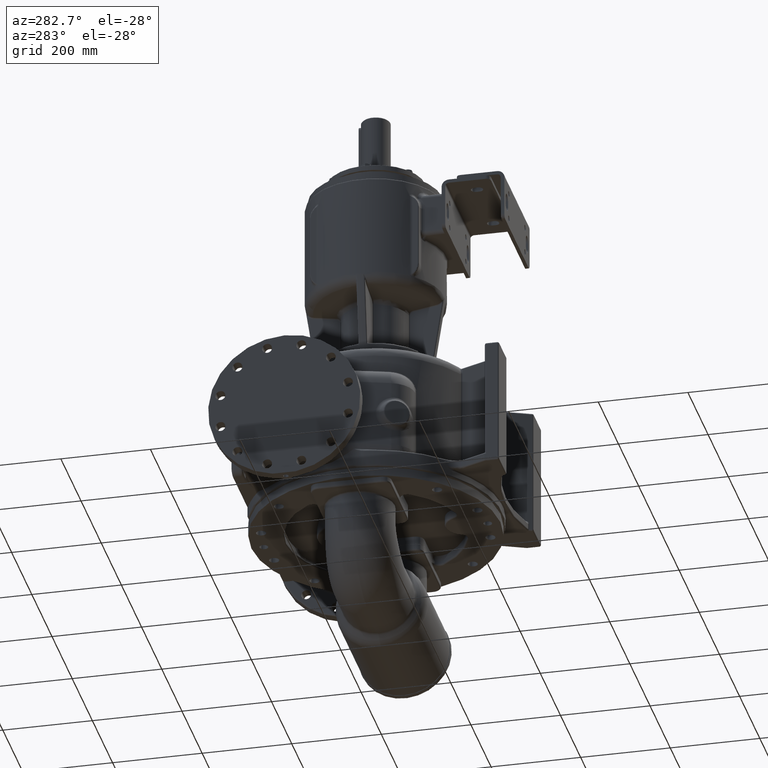
[diagram: clean part render]
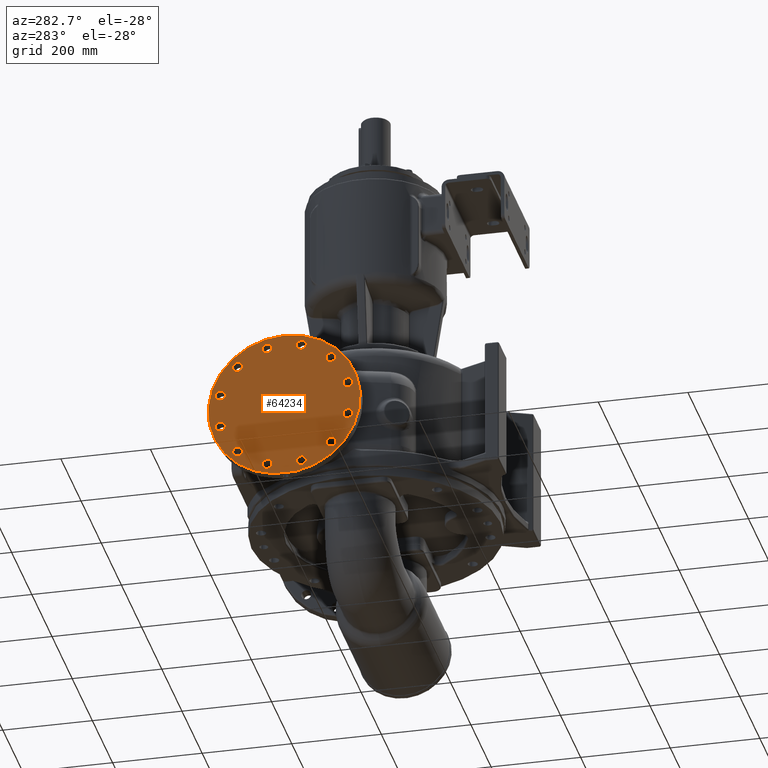
[diagram: same view with one face highlighted and labeled with its STEP entity id]
A machine part, auxiliary view. The second image highlights one B-rep face of the part: STEP entity #64234.
In plain terms, the highlighted planar face has unit normal (-1, 0, 0).
Its self-contained STEP definition (entity closure, byte-faithful):
#14852=CARTESIAN_POINT('',(-3.53E2,4.47E2,0.E0));
#14853=DIRECTION('',(-1.E0,0.E0,0.E0));
#14854=DIRECTION('',(0.E0,-1.529411764706E-1,-9.882352941176E-1));
#14855=AXIS2_PLACEMENT_3D('',#14852,#14853,#14854);
#14934=DIRECTION('',(0.E0,1.E0,0.E0));
#14935=VECTOR('',#14934,5.2E1);
#14936=CARTESIAN_POINT('',(-3.53E2,4.21E2,-1.68E2));
#14937=LINE('',#14936,#14935);
#14938=CARTESIAN_POINT('',(-3.53E2,5.894740593776E2,3.817580915262E1));
#14939=DIRECTION('',(1.E0,0.E0,0.E0));
#14940=DIRECTION('',(0.E0,1.E0,0.E0));
#14941=AXIS2_PLACEMENT_3D('',#14938,#14939,#14940);
#14943=CARTESIAN_POINT('',(-3.53E2,5.894740593776E2,3.817580915262E1));
#14944=DIRECTION('',(1.E0,0.E0,0.E0));
#14945=DIRECTION('',(0.E0,-1.E0,0.E0));
#14946=AXIS2_PLACEMENT_3D('',#14943,#14944,#14945);
#14948=CARTESIAN_POINT('',(-3.53E2,5.894740593776E2,-3.817580915262E1));
#14949=DIRECTION('',(1.E0,0.E0,0.E0));
#14950=DIRECTION('',(0.E0,8.660254037844E-1,-5.E-1));
#14951=AXIS2_PLACEMENT_3D('',#14948,#14949,#14950);
#14953=CARTESIAN_POINT('',(-3.53E2,5.894740593776E2,-3.817580915262E1));
#14954=DIRECTION('',(1.E0,0.E0,0.E0));
#14955=DIRECTION('',(0.E0,-8.660254037844E-1,5.E-1));
#14956=AXIS2_PLACEMENT_3D('',#14953,#14954,#14955);
#14958=CARTESIAN_POINT('',(-3.53E2,5.512982502250E2,-1.042982502250E2));
#14959=DIRECTION('',(1.E0,0.E0,0.E0));
#14960=DIRECTION('',(0.E0,5.E-1,-8.660254037844E-1));
#14961=AXIS2_PLACEMENT_3D('',#14958,#14959,#14960);
#14963=CARTESIAN_POINT('',(-3.53E2,5.512982502250E2,-1.042982502250E2));
#14964=DIRECTION('',(1.E0,0.E0,0.E0));
#14965=DIRECTION('',(0.E0,-5.E-1,8.660254037844E-1));
#14966=AXIS2_PLACEMENT_3D('',#14963,#14964,#14965);
#14968=CARTESIAN_POINT('',(-3.53E2,4.851758091526E2,-1.424740593776E2));
#14969=DIRECTION('',(1.E0,0.E0,0.E0));
#14970=DIRECTION('',(0.E0,0.E0,-1.E0));
#14971=AXIS2_PLACEMENT_3D('',#14968,#14969,#14970);
#14973=CARTESIAN_POINT('',(-3.53E2,4.851758091526E2,-1.424740593776E2));
#14974=DIRECTION('',(1.E0,0.E0,0.E0));
#14975=DIRECTION('',(0.E0,0.E0,1.E0));
#14976=AXIS2_PLACEMENT_3D('',#14973,#14974,#14975);
#14978=CARTESIAN_POINT('',(-3.53E2,4.088241908474E2,-1.424740593776E2));
#14979=DIRECTION('',(1.E0,0.E0,0.E0));
#14980=DIRECTION('',(0.E0,-5.E-1,-8.660254037844E-1));
#14981=AXIS2_PLACEMENT_3D('',#14978,#14979,#14980);
#14983=CARTESIAN_POINT('',(-3.53E2,4.088241908474E2,-1.424740593776E2));
#14984=DIRECTION('',(1.E0,0.E0,0.E0));
#14985=DIRECTION('',(0.E0,5.E-1,8.660254037844E-1));
#14986=AXIS2_PLACEMENT_3D('',#14983,#14984,#14985);
#14988=CARTESIAN_POINT('',(-3.53E2,3.427017497750E2,-1.042982502250E2));
#14989=DIRECTION('',(1.E0,0.E0,0.E0));
#14990=DIRECTION('',(0.E0,-8.660254037844E-1,-5.E-1));
#14991=AXIS2_PLACEMENT_3D('',#14988,#14989,#14990);
#14993=CARTESIAN_POINT('',(-3.53E2,3.427017497750E2,-1.042982502250E2));
#14994=DIRECTION('',(1.E0,0.E0,0.E0));
#14995=DIRECTION('',(0.E0,8.660254037844E-1,5.E-1));
#14996=AXIS2_PLACEMENT_3D('',#14993,#14994,#14995);
#14998=CARTESIAN_POINT('',(-3.53E2,3.045259406224E2,-3.817580915262E1));
#14999=DIRECTION('',(1.E0,0.E0,0.E0));
#15000=DIRECTION('',(0.E0,-1.E0,0.E0));
#15001=AXIS2_PLACEMENT_3D('',#14998,#14999,#15000);
#15003=CARTESIAN_POINT('',(-3.53E2,3.045259406224E2,-3.817580915262E1));
#15004=DIRECTION('',(1.E0,0.E0,0.E0));
#15005=DIRECTION('',(0.E0,1.E0,0.E0));
#15006=AXIS2_PLACEMENT_3D('',#15003,#15004,#15005);
#15008=CARTESIAN_POINT('',(-3.53E2,3.045259406224E2,3.817580915262E1));
#15009=DIRECTION('',(1.E0,0.E0,0.E0));
#15010=DIRECTION('',(0.E0,-8.660254037844E-1,5.E-1));
#15011=AXIS2_PLACEMENT_3D('',#15008,#15009,#15010);
#15013=CARTESIAN_POINT('',(-3.53E2,3.045259406224E2,3.817580915262E1));
#15014=DIRECTION('',(1.E0,0.E0,0.E0));
#15015=DIRECTION('',(0.E0,8.660254037844E-1,-5.E-1));
#15016=AXIS2_PLACEMENT_3D('',#15013,#15014,#15015);
#15018=CARTESIAN_POINT('',(-3.53E2,3.427017497750E2,1.042982502250E2));
#15019=DIRECTION('',(1.E0,0.E0,0.E0));
#15020=DIRECTION('',(0.E0,-5.E-1,8.660254037845E-1));
#15021=AXIS2_PLACEMENT_3D('',#15018,#15019,#15020);
#15023=CARTESIAN_POINT('',(-3.53E2,3.427017497750E2,1.042982502250E2));
#15024=DIRECTION('',(1.E0,0.E0,0.E0));
#15025=DIRECTION('',(0.E0,5.E-1,-8.660254037844E-1));
#15026=AXIS2_PLACEMENT_3D('',#15023,#15024,#15025);
#15028=CARTESIAN_POINT('',(-3.53E2,4.088241908474E2,1.424740593776E2));
#15029=DIRECTION('',(1.E0,0.E0,0.E0));
#15030=DIRECTION('',(0.E0,0.E0,1.E0));
#15031=AXIS2_PLACEMENT_3D('',#15028,#15029,#15030);
#15033=CARTESIAN_POINT('',(-3.53E2,4.088241908474E2,1.424740593776E2));
#15034=DIRECTION('',(1.E0,0.E0,0.E0));
#15035=DIRECTION('',(0.E0,0.E0,-1.E0));
#15036=AXIS2_PLACEMENT_3D('',#15033,#15034,#15035);
#15038=CARTESIAN_POINT('',(-3.53E2,4.851758091526E2,1.424740593776E2));
#15039=DIRECTION('',(1.E0,0.E0,0.E0));
#15040=DIRECTION('',(0.E0,5.E-1,8.660254037844E-1));
#15041=AXIS2_PLACEMENT_3D('',#15038,#15039,#15040);
#15043=CARTESIAN_POINT('',(-3.53E2,4.851758091526E2,1.424740593776E2));
#15044=DIRECTION('',(1.E0,0.E0,0.E0));
#15045=DIRECTION('',(0.E0,-5.E-1,-8.660254037844E-1));
#15046=AXIS2_PLACEMENT_3D('',#15043,#15044,#15045);
#15048=CARTESIAN_POINT('',(-3.53E2,5.512982502250E2,1.042982502250E2));
#15049=DIRECTION('',(1.E0,0.E0,0.E0));
#15050=DIRECTION('',(0.E0,8.660254037844E-1,5.E-1));
#15051=AXIS2_PLACEMENT_3D('',#15048,#15049,#15050);
#15053=CARTESIAN_POINT('',(-3.53E2,5.512982502250E2,1.042982502250E2));
#15054=DIRECTION('',(1.E0,0.E0,0.E0));
#15055=DIRECTION('',(0.E0,-8.660254037844E-1,-5.E-1));
#15056=AXIS2_PLACEMENT_3D('',#15053,#15054,#15055);
#34685=CARTESIAN_POINT('',(-3.53E2,4.73E2,-1.68E2));
#34687=VERTEX_POINT('',#34685);
#34689=CARTESIAN_POINT('',(-3.53E2,4.21E2,-1.68E2));
#34691=VERTEX_POINT('',#34689);
#35400=CARTESIAN_POINT('',(-3.53E2,6.004740593776E2,3.817580915262E1));
#35401=CARTESIAN_POINT('',(-3.53E2,5.784740593776E2,3.817580915262E1));
#35402=VERTEX_POINT('',#35400);
#35403=VERTEX_POINT('',#35401);
#35408=CARTESIAN_POINT('',(-3.53E2,5.990003388193E2,-4.367580915262E1));
#35409=CARTESIAN_POINT('',(-3.53E2,5.799477799360E2,-3.267580915262E1));
#35410=VERTEX_POINT('',#35408);
#35411=VERTEX_POINT('',#35409);
#35416=CARTESIAN_POINT('',(-3.53E2,5.567982502250E2,-1.138245296666E2));
#35417=CARTESIAN_POINT('',(-3.53E2,5.457982502250E2,-9.477197078339E1));
#35418=VERTEX_POINT('',#35416);
#35419=VERTEX_POINT('',#35417);
#35424=CARTESIAN_POINT('',(-3.53E2,4.851758091526E2,-1.534740593776E2));
#35425=CARTESIAN_POINT('',(-3.53E2,4.851758091526E2,-1.314740593776E2));
#35426=VERTEX_POINT('',#35424);
#35427=VERTEX_POINT('',#35425);
#35432=CARTESIAN_POINT('',(-3.53E2,4.033241908474E2,-1.520003388193E2));
#35433=CARTESIAN_POINT('',(-3.53E2,4.143241908474E2,-1.329477799360E2));
#35434=VERTEX_POINT('',#35432);
#35435=VERTEX_POINT('',#35433);
#35440=CARTESIAN_POINT('',(-3.53E2,3.331754703334E2,-1.097982502250E2));
#35441=CARTESIAN_POINT('',(-3.53E2,3.522280292166E2,-9.879825022502E1));
#35442=VERTEX_POINT('',#35440);
#35443=VERTEX_POINT('',#35441);
#35448=CARTESIAN_POINT('',(-3.53E2,2.935259406224E2,-3.817580915262E1));
#35449=CARTESIAN_POINT('',(-3.53E2,3.155259406224E2,-3.817580915262E1));
#35450=VERTEX_POINT('',#35448);
#35451=VERTEX_POINT('',#35449);
#35456=CARTESIAN_POINT('',(-3.53E2,2.949996611807E2,4.367580915262E1));
#35457=CARTESIAN_POINT('',(-3.53E2,3.140522200640E2,3.267580915262E1));
#35458=VERTEX_POINT('',#35456);
#35459=VERTEX_POINT('',#35457);
#35464=CARTESIAN_POINT('',(-3.53E2,3.372017497750E2,1.138245296666E2));
#35465=CARTESIAN_POINT('',(-3.53E2,3.482017497750E2,9.477197078339E1));
#35466=VERTEX_POINT('',#35464);
#35467=VERTEX_POINT('',#35465);
#35472=CARTESIAN_POINT('',(-3.53E2,4.088241908474E2,1.534740593776E2));
#35473=CARTESIAN_POINT('',(-3.53E2,4.088241908474E2,1.314740593776E2));
#35474=VERTEX_POINT('',#35472);
#35475=VERTEX_POINT('',#35473);
#35480=CARTESIAN_POINT('',(-3.53E2,4.906758091526E2,1.520003388193E2));
#35481=CARTESIAN_POINT('',(-3.53E2,4.796758091526E2,1.329477799360E2));
#35482=VERTEX_POINT('',#35480);
#35483=VERTEX_POINT('',#35481);
#35488=CARTESIAN_POINT('',(-3.53E2,5.608245296666E2,1.097982502250E2));
#35489=CARTESIAN_POINT('',(-3.53E2,5.417719707834E2,9.879825022502E1));
#35490=VERTEX_POINT('',#35488);
#35491=VERTEX_POINT('',#35489);
#64153=CARTESIAN_POINT('',(-3.53E2,4.47E2,0.E0));
#64154=DIRECTION('',(-1.E0,0.E0,0.E0));
#64155=DIRECTION('',(0.E0,0.E0,1.E0));
#64156=AXIS2_PLACEMENT_3D('',#64153,#64154,#64155);
#64157=PLANE('',#64156);
#64158=ORIENTED_EDGE('',*,*,#64085,.T.);
#64159=ORIENTED_EDGE('',*,*,#64144,.F.);
#64160=EDGE_LOOP('',(#64158,#64159));
#64161=FACE_OUTER_BOUND('',#64160,.F.);
#64163=ORIENTED_EDGE('',*,*,#64162,.F.);
#64165=ORIENTED_EDGE('',*,*,#64164,.F.);
#64166=EDGE_LOOP('',(#64163,#64165));
#64167=FACE_BOUND('',#64166,.F.);
#64169=ORIENTED_EDGE('',*,*,#64168,.F.);
#64171=ORIENTED_EDGE('',*,*,#64170,.F.);
#64172=EDGE_LOOP('',(#64169,#64171));
#64173=FACE_BOUND('',#64172,.F.);
#64175=ORIENTED_EDGE('',*,*,#64174,.F.);
#64177=ORIENTED_EDGE('',*,*,#64176,.F.);
#64178=EDGE_LOOP('',(#64175,#64177));
#64179=FACE_BOUND('',#64178,.F.);
#64181=ORIENTED_EDGE('',*,*,#64180,.F.);
#64183=ORIENTED_EDGE('',*,*,#64182,.F.);
#64184=EDGE_LOOP('',(#64181,#64183));
#64185=FACE_BOUND('',#64184,.F.);
#64187=ORIENTED_EDGE('',*,*,#64186,.F.);
#64189=ORIENTED_EDGE('',*,*,#64188,.F.);
#64190=EDGE_LOOP('',(#64187,#64189));
#64191=FACE_BOUND('',#64190,.F.);
#64193=ORIENTED_EDGE('',*,*,#64192,.F.);
#64195=ORIENTED_EDGE('',*,*,#64194,.F.);
#64196=EDGE_LOOP('',(#64193,#64195));
#64197=FACE_BOUND('',#64196,.F.);
#64199=ORIENTED_EDGE('',*,*,#64198,.F.);
#64201=ORIENTED_EDGE('',*,*,#64200,.F.);
#64202=EDGE_LOOP('',(#64199,#64201));
#64203=FACE_BOUND('',#64202,.F.);
#64205=ORIENTED_EDGE('',*,*,#64204,.F.);
#64207=ORIENTED_EDGE('',*,*,#64206,.F.);
#64208=EDGE_LOOP('',(#64205,#64207));
#64209=FACE_BOUND('',#64208,.F.);
#64211=ORIENTED_EDGE('',*,*,#64210,.F.);
#64213=ORIENTED_EDGE('',*,*,#64212,.F.);
#64214=EDGE_LOOP('',(#64211,#64213));
#64215=FACE_BOUND('',#64214,.F.);
#64217=ORIENTED_EDGE('',*,*,#64216,.F.);
#64219=ORIENTED_EDGE('',*,*,#64218,.F.);
#64220=EDGE_LOOP('',(#64217,#64219));
#64221=FACE_BOUND('',#64220,.F.);
#64223=ORIENTED_EDGE('',*,*,#64222,.F.);
#64225=ORIENTED_EDGE('',*,*,#64224,.F.);
#64226=EDGE_LOOP('',(#64223,#64225));
#64227=FACE_BOUND('',#64226,.F.);
#64229=ORIENTED_EDGE('',*,*,#64228,.F.);
#64231=ORIENTED_EDGE('',*,*,#64230,.F.);
#64232=EDGE_LOOP('',(#64229,#64231));
#64233=FACE_BOUND('',#64232,.F.);
#64234=ADVANCED_FACE('',(#64161,#64167,#64173,#64179,#64185,#64191,#64197,
#64203,#64209,#64215,#64221,#64227,#64233),#64157,.T.);
#14856=CIRCLE('',#14855,1.7E2);
#14942=CIRCLE('',#14941,1.1E1);
#14947=CIRCLE('',#14946,1.1E1);
#14952=CIRCLE('',#14951,1.1E1);
#14957=CIRCLE('',#14956,1.1E1);
#14962=CIRCLE('',#14961,1.1E1);
#14967=CIRCLE('',#14966,1.1E1);
#14972=CIRCLE('',#14971,1.1E1);
#14977=CIRCLE('',#14976,1.1E1);
#14982=CIRCLE('',#14981,1.1E1);
#14987=CIRCLE('',#14986,1.1E1);
#14992=CIRCLE('',#14991,1.1E1);
#14997=CIRCLE('',#14996,1.1E1);
#15002=CIRCLE('',#15001,1.1E1);
#15007=CIRCLE('',#15006,1.1E1);
#15012=CIRCLE('',#15011,1.1E1);
#15017=CIRCLE('',#15016,1.1E1);
#15022=CIRCLE('',#15021,1.1E1);
#15027=CIRCLE('',#15026,1.1E1);
#15032=CIRCLE('',#15031,1.1E1);
#15037=CIRCLE('',#15036,1.1E1);
#15042=CIRCLE('',#15041,1.1E1);
#15047=CIRCLE('',#15046,1.1E1);
#15052=CIRCLE('',#15051,1.1E1);
#15057=CIRCLE('',#15056,1.1E1);
#64085=EDGE_CURVE('',#34691,#34687,#14937,.T.);
#64144=EDGE_CURVE('',#34691,#34687,#14856,.T.);
#64162=EDGE_CURVE('',#35402,#35403,#14942,.T.);
#64164=EDGE_CURVE('',#35403,#35402,#14947,.T.);
#64168=EDGE_CURVE('',#35410,#35411,#14952,.T.);
#64170=EDGE_CURVE('',#35411,#35410,#14957,.T.);
#64174=EDGE_CURVE('',#35418,#35419,#14962,.T.);
#64176=EDGE_CURVE('',#35419,#35418,#14967,.T.);
#64180=EDGE_CURVE('',#35426,#35427,#14972,.T.);
#64182=EDGE_CURVE('',#35427,#35426,#14977,.T.);
#64186=EDGE_CURVE('',#35434,#35435,#14982,.T.);
#64188=EDGE_CURVE('',#35435,#35434,#14987,.T.);
#64192=EDGE_CURVE('',#35442,#35443,#14992,.T.);
#64194=EDGE_CURVE('',#35443,#35442,#14997,.T.);
#64198=EDGE_CURVE('',#35450,#35451,#15002,.T.);
#64200=EDGE_CURVE('',#35451,#35450,#15007,.T.);
#64204=EDGE_CURVE('',#35458,#35459,#15012,.T.);
#64206=EDGE_CURVE('',#35459,#35458,#15017,.T.);
#64210=EDGE_CURVE('',#35466,#35467,#15022,.T.);
#64212=EDGE_CURVE('',#35467,#35466,#15027,.T.);
#64216=EDGE_CURVE('',#35474,#35475,#15032,.T.);
#64218=EDGE_CURVE('',#35475,#35474,#15037,.T.);
#64222=EDGE_CURVE('',#35482,#35483,#15042,.T.);
#64224=EDGE_CURVE('',#35483,#35482,#15047,.T.);
#64228=EDGE_CURVE('',#35490,#35491,#15052,.T.);
#64230=EDGE_CURVE('',#35491,#35490,#15057,.T.);